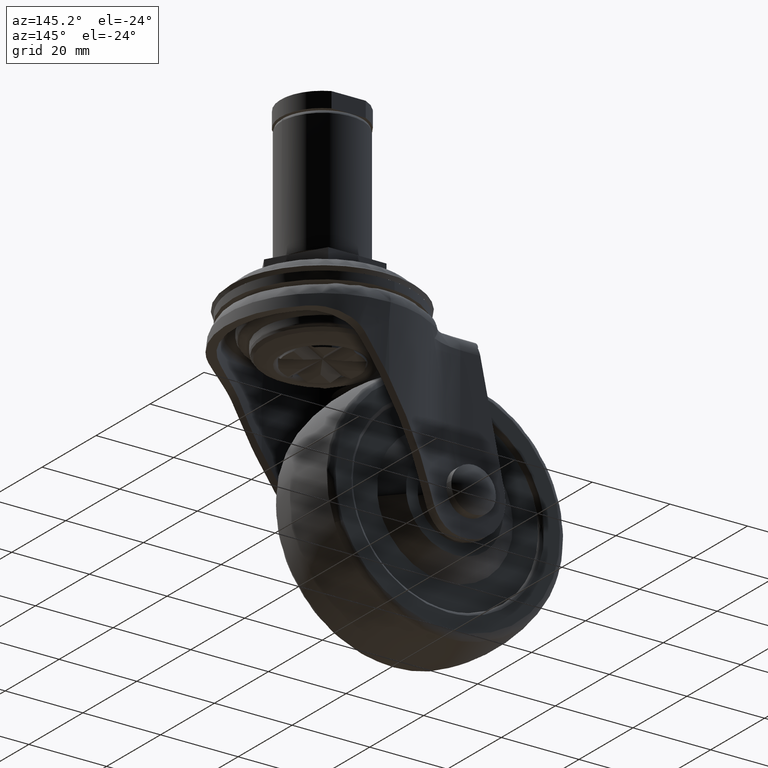
[diagram: clean part render]
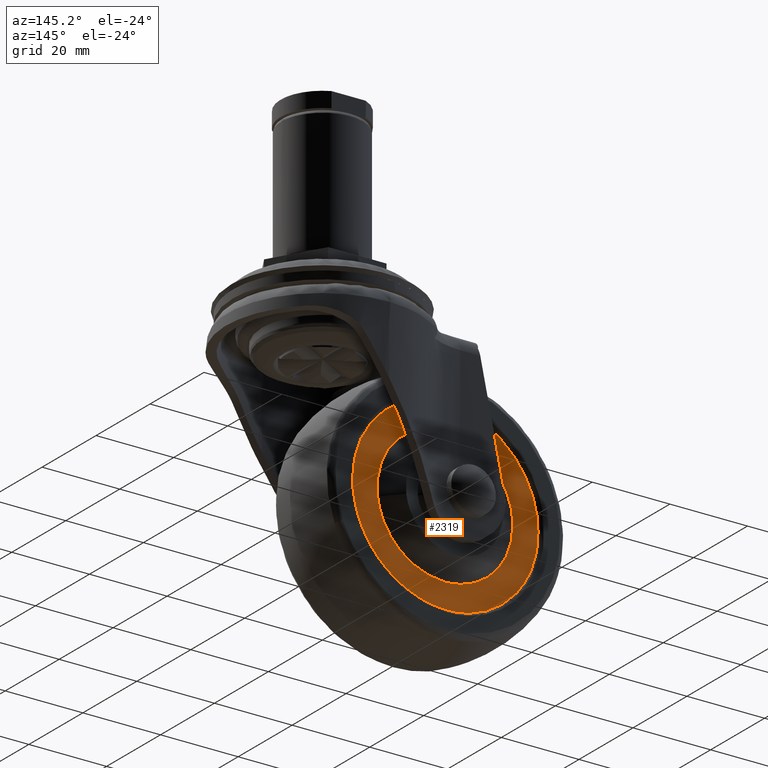
[diagram: same view with one face highlighted and labeled with its STEP entity id]
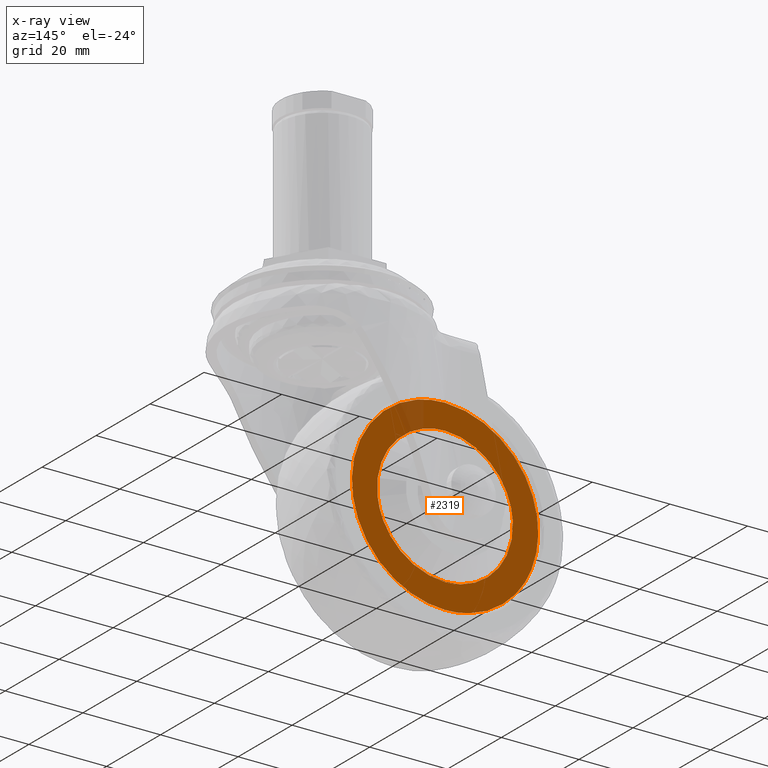
[diagram: x-ray of the same camera — body ghosted, the highlighted face saturated]
A machine part, auxiliary view. The second image highlights one B-rep face of the part: STEP entity #2319.
The next image is the same camera in x-ray: the body ghosted, the highlighted face saturated — about 5% of this face is hidden behind the body in this view.
In plain terms, the highlighted face is a freeform B-spline surface patch.
Its self-contained STEP definition (entity closure, byte-faithful):
#286=CARTESIAN_POINT('',(-42.467259158933949,9.500070020716041,-49.431756662611789));
#287=VERTEX_POINT('',#286);
#293=CARTESIAN_POINT('',(-25.0,9.500070020754128,-33.000200000000000));
#294=VERTEX_POINT('',#293);
#295=CARTESIAN_POINT('',(-25.0,9.500070020754128,-33.000200000000000));
#296=CARTESIAN_POINT('',(-41.462262099527599,9.500070020754128,-33.000200000000007));
#297=CARTESIAN_POINT('',(-42.467259158933949,9.500070020716041,-49.431756662611789));
#305=(BOUNDED_CURVE()B_SPLINE_CURVE(2,(#295,#296,#297),.UNSPECIFIED.,.F.,.U.)B_SPLINE_CURVE_WITH_KNOTS((3,3),(0.500000000000000,0.739332962234484),.UNSPECIFIED.)CURVE()GEOMETRIC_REPRESENTATION_ITEM()RATIONAL_B_SPLINE_CURVE((1.0,0.719603993291934,0.976072041657162))REPRESENTATION_ITEM(''));
#306=EDGE_CURVE('',#294,#287,#305,.T.);
#308=CARTESIAN_POINT('',(-7.622432589583038,9.500070020724102,-52.565687303387350));
#309=VERTEX_POINT('',#308);
#310=CARTESIAN_POINT('',(-7.622432589583038,9.500070020724102,-52.565687303387350));
#311=CARTESIAN_POINT('',(-7.500100000000002,9.500070020754128,-51.536516171812245));
#312=CARTESIAN_POINT('',(-7.500100000000002,9.500070020754128,-50.500100000000003));
#313=CARTESIAN_POINT('',(-7.500100000000004,9.500070020754130,-33.000200000000007));
#314=CARTESIAN_POINT('',(-25.0,9.500070020754128,-33.000200000000000));
#322=(BOUNDED_CURVE()B_SPLINE_CURVE(2,(#310,#311,#312,#313,#314),.UNSPECIFIED.,.F.,.U.)B_SPLINE_CURVE_WITH_KNOTS((3,2,3),(0.229562473509566,0.250000000000000,0.500000000000000),.UNSPECIFIED.)CURVE()GEOMETRIC_REPRESENTATION_ITEM()RATIONAL_B_SPLINE_CURVE((0.956026754175972,0.976055948326526,1.0,0.707106781186547,1.0))REPRESENTATION_ITEM(''));
#323=EDGE_CURVE('',#309,#294,#322,.T.);
#367=CARTESIAN_POINT('',(-25.0,9.500070020754128,-68.0));
#368=VERTEX_POINT('',#367);
#369=CARTESIAN_POINT('',(-25.0,9.500070020754128,-68.0));
#370=CARTESIAN_POINT('',(-9.457034613866606,9.500070020754128,-68.000000000000014));
#371=CARTESIAN_POINT('',(-7.622432589583038,9.500070020724102,-52.565687303387350));
#379=(BOUNDED_CURVE()B_SPLINE_CURVE(2,(#369,#370,#371),.UNSPECIFIED.,.F.,.U.)B_SPLINE_CURVE_WITH_KNOTS((3,3),(0.0,0.229562473509566),.UNSPECIFIED.)CURVE()GEOMETRIC_REPRESENTATION_ITEM()RATIONAL_B_SPLINE_CURVE((1.0,0.731050832860021,0.956026754175972))REPRESENTATION_ITEM(''));
#380=EDGE_CURVE('',#368,#309,#379,.T.);
#382=CARTESIAN_POINT('',(-42.467259158933949,9.500070020716041,-49.431756662611797));
#383=CARTESIAN_POINT('',(-42.499900000000004,9.500070020754128,-49.965429697171103));
#384=CARTESIAN_POINT('',(-42.499899999999997,9.500070020754128,-50.500100000000003));
#385=CARTESIAN_POINT('',(-42.499900000000004,9.500070020754130,-68.0));
#386=CARTESIAN_POINT('',(-25.0,9.500070020754128,-68.0));
#394=(BOUNDED_CURVE()B_SPLINE_CURVE(2,(#382,#383,#384,#385,#386),.UNSPECIFIED.,.F.,.U.)B_SPLINE_CURVE_WITH_KNOTS((3,2,3),(0.739332962234484,0.750000000000000,1.0),.UNSPECIFIED.)CURVE()GEOMETRIC_REPRESENTATION_ITEM()RATIONAL_B_SPLINE_CURVE((0.976072041657160,0.987502787894613,1.0,0.707106781186547,1.0))REPRESENTATION_ITEM(''));
#395=EDGE_CURVE('',#287,#368,#394,.T.);
#459=CARTESIAN_POINT('',(-11.974566318670799,9.500070020754126,-70.657810123505186));
#460=VERTEX_POINT('',#459);
#466=CARTESIAN_POINT('',(-25.0,9.500070020754128,-26.500200000000000));
#467=VERTEX_POINT('',#466);
#468=CARTESIAN_POINT('',(-11.974566318670806,9.500070020754128,-70.657810123505186));
#469=CARTESIAN_POINT('',(-1.000100000000000,9.500070020754128,-63.566370552939773));
#470=CARTESIAN_POINT('',(-1.000100000000000,9.500070020754128,-50.500100000000003));
#471=CARTESIAN_POINT('',(-1.000100000000000,9.500070020754128,-26.500200000000003));
#472=CARTESIAN_POINT('',(-25.0,9.500070020754128,-26.500200000000000));
#480=(BOUNDED_CURVE()B_SPLINE_CURVE(2,(#468,#469,#470,#471,#472),.UNSPECIFIED.,.F.,.U.)B_SPLINE_CURVE_WITH_KNOTS((3,2,3),(0.092934707196555,0.250000000000000,0.500000000000000),.UNSPECIFIED.)CURVE()GEOMETRIC_REPRESENTATION_ITEM()RATIONAL_B_SPLINE_CURVE((0.863190121126144,0.815986563307686,1.0,0.707106781186548,1.0))REPRESENTATION_ITEM(''));
#481=EDGE_CURVE('',#460,#467,#480,.T.);
#483=CARTESIAN_POINT('',(-43.518916043163870,9.500070020754128,-65.765909791695364));
#484=VERTEX_POINT('',#483);
#485=CARTESIAN_POINT('',(-25.0,9.500070020754128,-26.500200000000000));
#486=CARTESIAN_POINT('',(-48.999899999999997,9.500070020754128,-26.500200000000003));
#487=CARTESIAN_POINT('',(-48.999899999999997,9.500070020754128,-50.500100000000003));
#488=CARTESIAN_POINT('',(-48.999899999999990,9.500070020754128,-59.116941730677020));
#489=CARTESIAN_POINT('',(-43.518916043163877,9.500070020754128,-65.765909791695364));
#497=(BOUNDED_CURVE()B_SPLINE_CURVE(2,(#485,#486,#487,#488,#489),.UNSPECIFIED.,.F.,.U.)B_SPLINE_CURVE_WITH_KNOTS((3,2,3),(0.500000000000000,0.750000000000000,0.860504594114776),.UNSPECIFIED.)CURVE()GEOMETRIC_REPRESENTATION_ITEM()RATIONAL_B_SPLINE_CURVE((1.0,0.707106781186548,1.0,0.870535814944197,0.855522727664328))REPRESENTATION_ITEM(''));
#498=EDGE_CURVE('',#467,#484,#497,.T.);
#600=CARTESIAN_POINT('',(-25.0,9.500070020754128,-74.500000000000000));
#601=VERTEX_POINT('',#600);
#602=CARTESIAN_POINT('',(-43.518916043163877,9.500070020754128,-65.765909791695364));
#603=CARTESIAN_POINT('',(-36.319090766527680,9.500070020754126,-74.499999999999986));
#604=CARTESIAN_POINT('',(-25.0,9.500070020754128,-74.500000000000000));
#612=(BOUNDED_CURVE()B_SPLINE_CURVE(2,(#602,#603,#604),.UNSPECIFIED.,.F.,.U.)B_SPLINE_CURVE_WITH_KNOTS((3,3),(0.860504594114776,1.0),.UNSPECIFIED.)CURVE()GEOMETRIC_REPRESENTATION_ITEM()RATIONAL_B_SPLINE_CURVE((0.855522727664328,0.836570966242351,1.0))REPRESENTATION_ITEM(''));
#613=EDGE_CURVE('',#484,#601,#612,.T.);
#615=CARTESIAN_POINT('',(-25.0,9.500070020754128,-74.500000000000000));
#616=CARTESIAN_POINT('',(-17.920606325066156,9.500070020754130,-74.500000000000000));
#617=CARTESIAN_POINT('',(-11.974566318670806,9.500070020754128,-70.657810123505186));
#625=(BOUNDED_CURVE()B_SPLINE_CURVE(2,(#615,#616,#617),.UNSPECIFIED.,.F.,.U.)B_SPLINE_CURVE_WITH_KNOTS((3,3),(0.0,0.092934707196555),.UNSPECIFIED.)CURVE()GEOMETRIC_REPRESENTATION_ITEM()RATIONAL_B_SPLINE_CURVE((1.0,0.891120217878861,0.863190121126144))REPRESENTATION_ITEM(''));
#626=EDGE_CURVE('',#601,#460,#625,.T.);
#2302=CARTESIAN_POINT('',(-51.395327482849567,9.500070020754128,-76.897589916967078));
#2303=CARTESIAN_POINT('',(-51.395327482849567,9.500070020754128,-24.102608795577961));
#2304=CARTESIAN_POINT('',(1.386037636990162,9.500070020754128,-76.897589916967078));
#2305=CARTESIAN_POINT('',(1.386037636990162,9.500070020754128,-24.102608795577961));
#2306=B_SPLINE_SURFACE_WITH_KNOTS('',1,1,((#2302,#2304),(#2303,#2305)),.UNSPECIFIED.,.F.,.F.,.U.,(2,2),(2,2),(0.0,52.794981121389107),(0.0,52.781365119839727),.UNSPECIFIED.);
#2307=ORIENTED_EDGE('',*,*,#613,.F.);
#2308=ORIENTED_EDGE('',*,*,#498,.F.);
#2309=ORIENTED_EDGE('',*,*,#481,.F.);
#2310=ORIENTED_EDGE('',*,*,#626,.F.);
#2311=EDGE_LOOP('',(#2307,#2308,#2309,#2310));
#2312=FACE_OUTER_BOUND('',#2311,.T.);
#2313=ORIENTED_EDGE('',*,*,#306,.T.);
#2314=ORIENTED_EDGE('',*,*,#395,.T.);
#2315=ORIENTED_EDGE('',*,*,#380,.T.);
#2316=ORIENTED_EDGE('',*,*,#323,.T.);
#2317=EDGE_LOOP('',(#2313,#2314,#2315,#2316));
#2318=FACE_BOUND('',#2317,.T.);
#2319=ADVANCED_FACE('',(#2312,#2318),#2306,.T.);